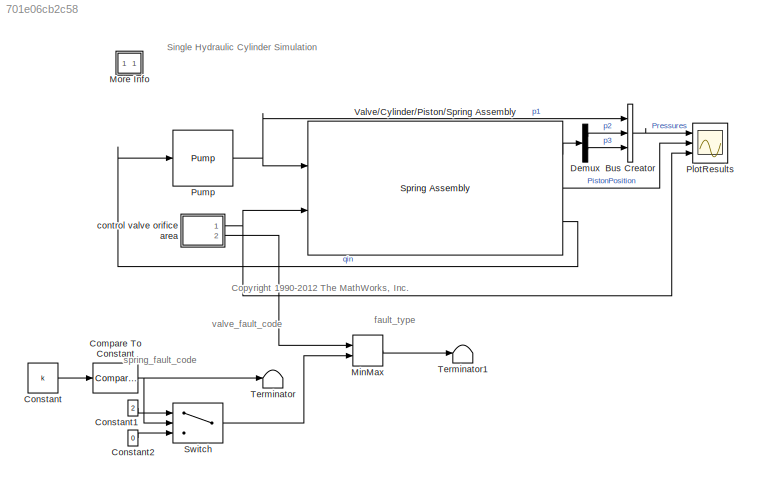
MODEL slx_701e06cb2c58
KIND model
CONFIG AbsTol = 1e-6
CONFIG EnableMultiTasking = off
CONFIG FixedStep = 0.01
CONFIG MaxStep = auto
CONFIG MinStep = auto
CONFIG RelTol = 1e-4
CONFIG SampleTimeConstraint = Unconstrained
CONFIG Solver = FixedStepAuto
CONFIG SolverName = FixedStepAuto
CONFIG StartTime = 0
CONFIG StopTime = 10
WORKSPACE source: MATLAB code (in-file)
WORKSPACE code: load sldemo_hydcyl_data;
BLOCK [BusCreator] Bus Creator
  DisplayOption = bar
  InheritFromInputs = on
  Inputs = 3
  Ports = [3, 1]
BLOCK [Reference] Compare To Constant  REF=simulink/Logic and Bit
Operations/Compare
To Constant
  Ports = [1, 1]
  SourceBlock = simulink/Logic and Bit\nOperations/Compare\nTo Constant
  SourceProductBaseCode = SL
  SourceProductName = Simulink
  SourceType = Compare To Constant
BLOCK [Constant] Constant
  Value = k
BLOCK [Constant] Constant1
  Value = 2
BLOCK [Constant] Constant2
  Value = 0
BLOCK [Demux] Demux
  DisplayOption = bar
  Outputs = 2
  Ports = [1, 2]
BLOCK [MinMax] MinMax
  Function = max
  InputSameDT = off
  Inputs = 2
  Ports = [2, 1]
  SaturateOnIntegerOverflow = off
BLOCK [SubSystem] More Info
  OpenFcn = showExample('simulink_general/sldemo_hydcylExample')
  Ports = []
  RequestExecContextInheritance = off
BLOCK [Scope] PlotResults
  Floating = off
  NumInputPorts = 3
  Ports = [3]
  ScopeSpecificationString = Simulink.scopes.TimeScopeBlockCfg('CurrentConfiguration', extmgr.ConfigurationSet(extmgr.Configuration('Core','General UI',true),extmgr.Configuration('Core','Source UI',true),extmgr.Configuration('Sources','WiredSimulink',true,'DataLoggingSaveFormat','Array','DataLoggingDecimation','1','DataLoggingDecimateData',true),extmgr.Configuration('Visuals','Time Domain',true,'TimeAxisLabels','All','Seriali...<+3737ch>
BLOCK [Reference] Pump  REF=hydlib/Pump  (lib defined in mdl_a1138ae370f5)
  Ports = [1, 1]
  SourceBlock = hydlib/Pump
  SourceType = Pump
BLOCK [Switch] Switch
  Criteria = u2 ~= 0
  InputSameDT = off
  SaturateOnIntegerOverflow = off
BLOCK [Terminator] Terminator
BLOCK [Terminator] Terminator1
BLOCK [Reference] Valve//Cylinder//Piston//Spring Assembly  REF=hydlib/Valve//Cylinder//Piston//Spring Assembly  (lib defined in mdl_a1138ae370f5)
  Ports = [2, 3]
  SourceBlock = hydlib/Valve//Cylinder//Piston//Spring Assembly
  SourceType = Valve/Cylinder/Piston/Spring Assembly
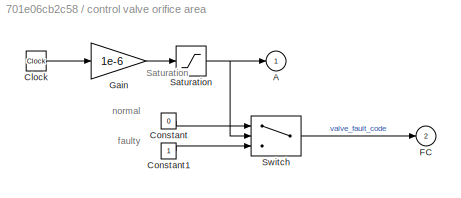
BLOCK [SubSystem] control valve orifice area
  Ports = [0, 2]
  RequestExecContextInheritance = off
  ShowPortLabels = none
BLOCK [Outport] control valve orifice area/A
  IconDisplay = Port number
  InitialOutput = 0
  VectorParamsAs1DForOutWhenUnconnected = off
BLOCK [Clock] control valve orifice area/Clock
BLOCK [Constant] control valve orifice area/Constant
  Value = 0
BLOCK [Constant] control valve orifice area/Constant1
BLOCK [Outport] control valve orifice area/FC
  IconDisplay = Port number
  InitialOutput = 0
  Port = 2
  VectorParamsAs1DForOutWhenUnconnected = off
BLOCK [Gain] control valve orifice area/Gain
  Gain = 1e-6
BLOCK [Saturate] control valve orifice area/Saturation
  InputPortMap = u0
  Ports = [1, 1]
  UpperLimit = sat
BLOCK [Switch] control valve orifice area/Switch
  Criteria = u2 > Threshold
  InputSameDT = off
  SaturateOnIntegerOverflow = off
  Threshold = 2.5e-6
ANNOTATION (root): <copyright redacted>
ANNOTATION (root): Single Hydraulic Cylinder Simulation
ANNOTATION (root): fault_type
ANNOTATION (root): spring_fault_code
ANNOTATION (root): valve_fault_code
ANNOTATION control valve orifice area: Saturation
ANNOTATION control valve orifice area: faulty
ANNOTATION control valve orifice area: normal
LINE Bus Creator:1 -> PlotResults:1
NET Compare To Constant:1 -> Switch:2, Terminator:1
LINE Constant1:1 -> Switch:1
LINE Constant2:1 -> Switch:3
LINE Constant:1 -> Compare To Constant:1
LINE Demux:1 -> Bus Creator:2
LINE Demux:2 -> Bus Creator:3
LINE MinMax:1 -> Terminator1:1
NET Pump:1 -> Bus Creator:1, Valve//Cylinder//Piston//Spring Assembly:1
LINE Switch:1 -> MinMax:2
LINE Valve//Cylinder//Piston//Spring Assembly:1 -> Demux:1
LINE Valve//Cylinder//Piston//Spring Assembly:2 -> PlotResults:2
LINE Valve//Cylinder//Piston//Spring Assembly:3 -> Pump:1
LINE control valve orifice area/Clock:1 -> control valve orifice area/Gain:1
LINE control valve orifice area/Constant1:1 -> control valve orifice area/Switch:3
LINE control valve orifice area/Constant:1 -> control valve orifice area/Switch:1
LINE control valve orifice area/Gain:1 -> control valve orifice area/Saturation:1
NET control valve orifice area/Saturation:1 -> control valve orifice area/A:1, control valve orifice area/Switch:2
LINE control valve orifice area/Switch:1 -> control valve orifice area/FC:1
NET control valve orifice area:1 -> PlotResults:3, Valve//Cylinder//Piston//Spring Assembly:2
LINE control valve orifice area:2 -> MinMax:1
note: NET lines group one-source signal fan-out (src -> all destinations, sorted); 1:1 wires keep LINE
